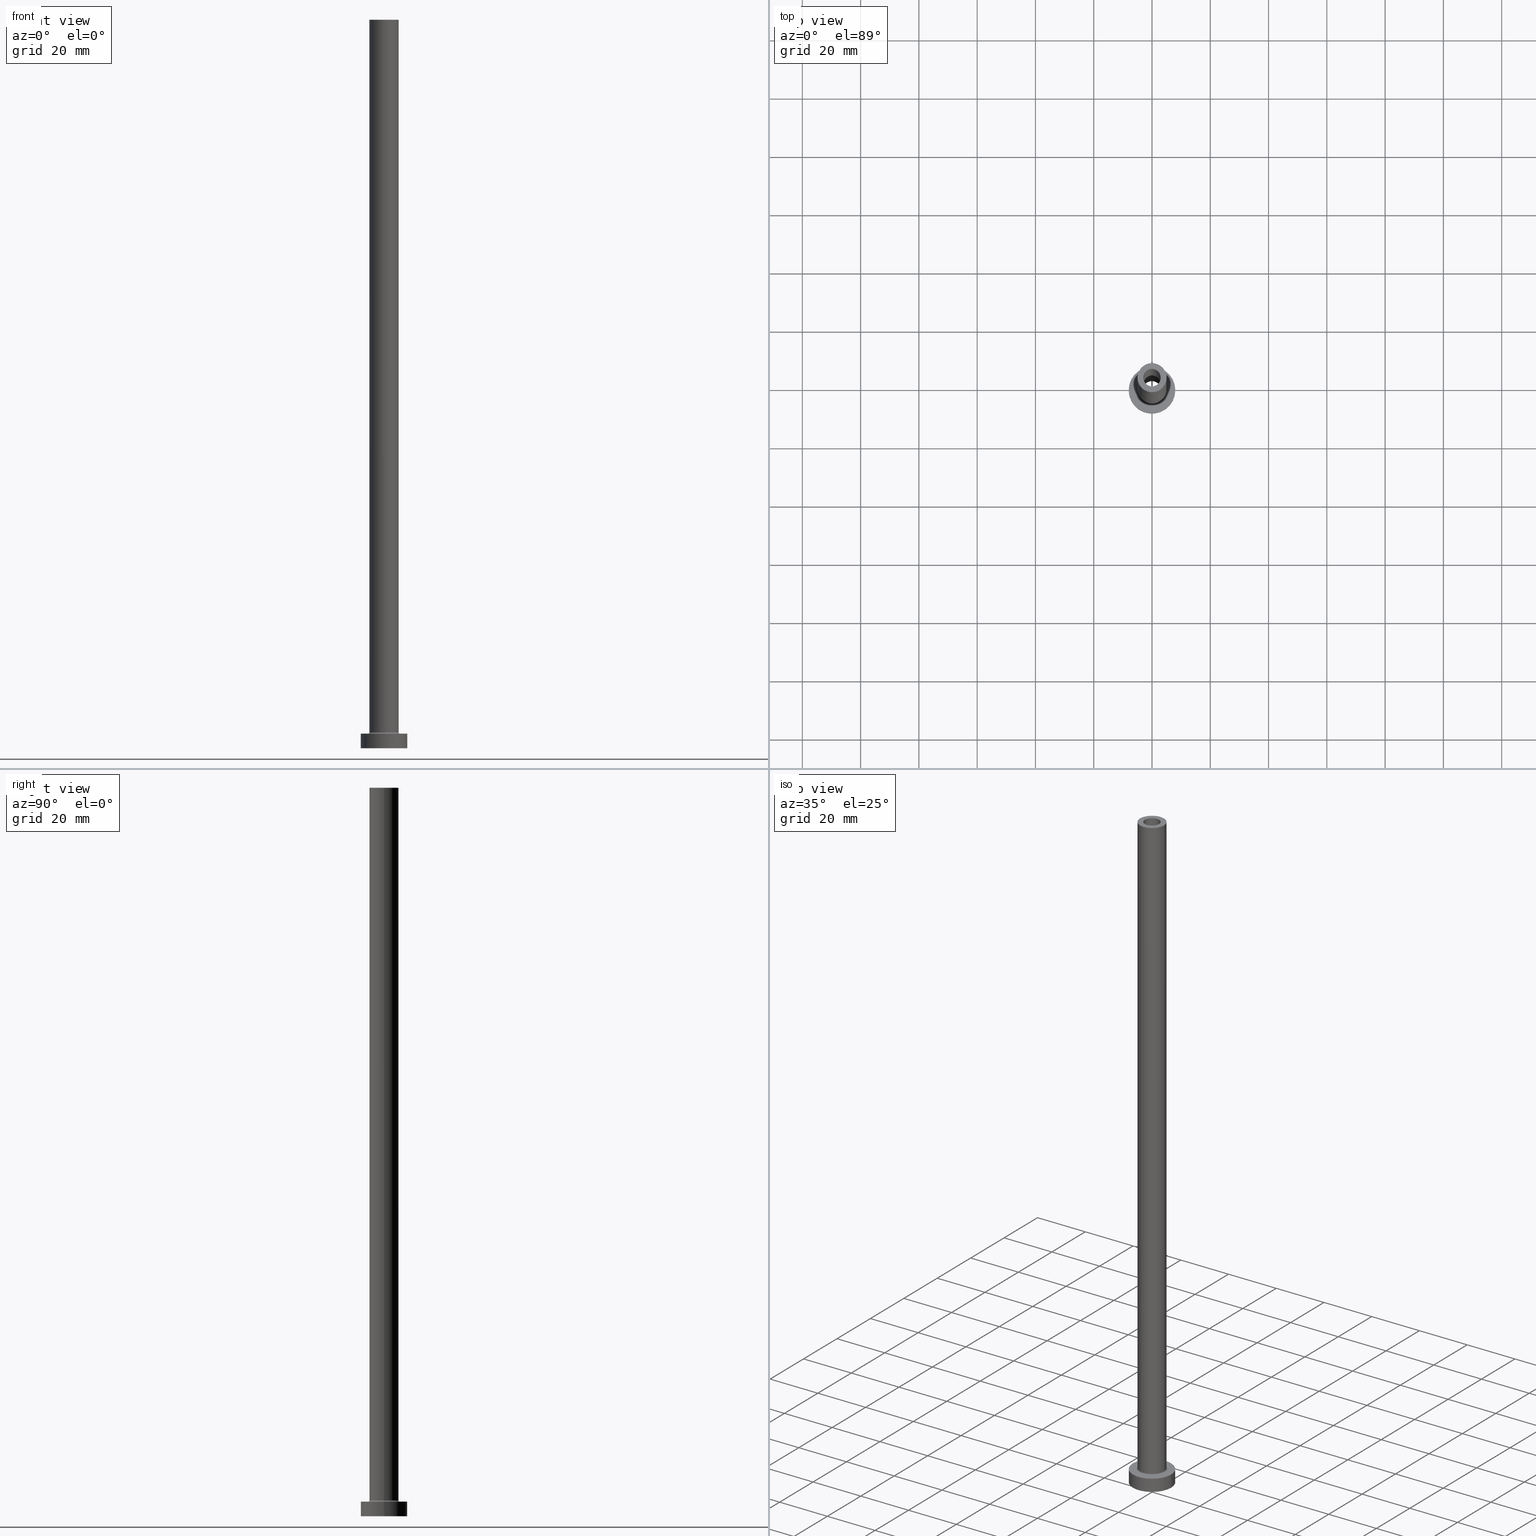
[diagram: canonical four-view strip — front | top / right | iso, engineering-drawing reading convention]
A machine part, canonical four-view strip (front | top / right | iso — engineering-drawing reading convention). The complete STEP part file that produces these views, byte-faithful:
ISO-10303-21;
HEADER;
FILE_DESCRIPTION (( 'STEP AP203' ),
    '1' );
FILE_NAME ('a1bf.STEP',
    '2023-02-13T09:13:33',
    ( '' ),
    ( '' ),
    'SwSTEP 2.0',
    'SolidWorks 2019',
    '' );
FILE_SCHEMA (( 'CONFIG_CONTROL_DESIGN' ));
ENDSEC;

DATA;
#1 = DIRECTION ( 'NONE',  ( 1.000000000000000000, 0.000000000000000000, -0.000000000000000000 ) ) ;
#2 = VERTEX_POINT ( 'NONE', #296 ) ;
#3 = CC_DESIGN_APPROVAL ( #139, ( #97 ) ) ;
#4 = EDGE_CURVE ( 'NONE', #98, #156, #349, .T. ) ;
#5 = ORIENTED_EDGE ( 'NONE', *, *, #283, .T. ) ;
#6 = DIRECTION ( 'NONE',  ( 1.000000000000000000, 0.000000000000000000, -0.000000000000000000 ) ) ;
#7 = CC_DESIGN_DATE_AND_TIME_ASSIGNMENT ( #41, #38, ( #97 ) ) ;
#8 = DIRECTION ( 'NONE',  ( 0.000000000000000000, 0.000000000000000000, 1.000000000000000000 ) ) ;
#9 = AXIS2_PLACEMENT_3D ( 'NONE', #418, #234, #50 ) ;
#10 = ORIENTED_EDGE ( 'NONE', *, *, #68, .T. ) ;
#11 = ORIENTED_EDGE ( 'NONE', *, *, #381, .T. ) ;
#12 = PERSON_AND_ORGANIZATION ( #409, #137 ) ;
#13 = CARTESIAN_POINT ( 'NONE',  ( 0.000000000000000000, 0.000000000000000000, 205.0000000000000284 ) ) ;
#14 = DIRECTION ( 'NONE',  ( 1.000000000000000000, 0.000000000000000000, 0.000000000000000000 ) ) ;
#15 = ADVANCED_FACE ( 'NONE', ( #43 ), #435, .T. ) ;
#16 = DIRECTION ( 'NONE',  ( -0.000000000000000000, -0.000000000000000000, -1.000000000000000000 ) ) ;
#17 = CARTESIAN_POINT ( 'NONE',  ( 3.000000000000000444, 3.673940397442059868E-16, 205.0000000000000284 ) ) ;
#18 = DIRECTION ( 'NONE',  ( 0.000000000000000000, 0.000000000000000000, 1.000000000000000000 ) ) ;
#19 = FACE_OUTER_BOUND ( 'NONE', #398, .T. ) ;
#20 = CYLINDRICAL_SURFACE ( 'NONE', #350, 3.000000000000000444 ) ;
#21 = DATE_AND_TIME ( #346, #299 ) ;
#22 = APPLICATION_PROTOCOL_DEFINITION ( 'international standard', 'config_control_design', 1994, #52 ) ;
#23 = DIRECTION ( 'NONE',  ( 0.000000000000000000, 0.000000000000000000, -1.000000000000000000 ) ) ;
#24 = EDGE_CURVE ( 'NONE', #379, #173, #406, .T. ) ;
#25 = APPROVAL_PERSON_ORGANIZATION ( #201, #139, #136 ) ;
#26 = SHAPE_DEFINITION_REPRESENTATION ( #226, #257 ) ;
#27 = CARTESIAN_POINT ( 'NONE',  ( -5.500000000000000000, 6.735557395310442023E-16, 5.000000000000002665 ) ) ;
#28 = EDGE_LOOP ( 'NONE', ( #242, #330, #454, #34 ) ) ;
#29 = SECURITY_CLASSIFICATION_LEVEL ( 'unclassified' ) ;
#30 = FACE_BOUND ( 'NONE', #396, .T. ) ;
#31 = ORIENTED_EDGE ( 'NONE', *, *, #109, .F. ) ;
#32 = ADVANCED_FACE ( 'NONE', ( #123 ), #297, .T. ) ;
#33 = FACE_OUTER_BOUND ( 'NONE', #96, .T. ) ;
#34 = ORIENTED_EDGE ( 'NONE', *, *, #59, .F. ) ;
#35 = VECTOR ( 'NONE', #119, 1000.000000000000000 ) ;
#36 = LINE ( 'NONE', #397, #81 ) ;
#37 = EDGE_LOOP ( 'NONE', ( #419, #408 ) ) ;
#38 = DATE_TIME_ROLE ( 'creation_date' ) ;
#39 = AXIS2_PLACEMENT_3D ( 'NONE', #328, #263, #155 ) ;
#40 = VERTEX_POINT ( 'NONE', #437 ) ;
#41 = DATE_AND_TIME ( #219, #74 ) ;
#42 = DIRECTION ( 'NONE',  ( 1.000000000000000000, 0.000000000000000000, 0.000000000000000000 ) ) ;
#43 = FACE_OUTER_BOUND ( 'NONE', #410, .T. ) ;
#44 = DIRECTION ( 'NONE',  ( 1.000000000000000000, 0.000000000000000000, 0.000000000000000000 ) ) ;
#45 = FACE_OUTER_BOUND ( 'NONE', #439, .T. ) ;
#46 = CIRCLE ( 'NONE', #316, 3.150000000000000355 ) ;
#47 = CC_DESIGN_PERSON_AND_ORGANIZATION_ASSIGNMENT ( #216, #259, ( #97 ) ) ;
#48 = ORIENTED_EDGE ( 'NONE', *, *, #169, .F. ) ;
#49 = DIRECTION ( 'NONE',  ( -1.000000000000000000, 0.000000000000000000, 0.000000000000000000 ) ) ;
#50 = DIRECTION ( 'NONE',  ( 1.000000000000000000, 0.000000000000000000, 0.000000000000000000 ) ) ;
#51 = VERTEX_POINT ( 'NONE', #364 ) ;
#52 = APPLICATION_CONTEXT ( 'configuration controlled 3d designs of mechanical parts and assemblies' ) ;
#53 = DIRECTION ( 'NONE',  ( 0.000000000000000000, 0.000000000000000000, 1.000000000000000000 ) ) ;
#54 = CIRCLE ( 'NONE', #89, 3.000000000000000444 ) ;
#55 = PERSON_AND_ORGANIZATION_ROLE ( 'design_owner' ) ;
#56 = VERTEX_POINT ( 'NONE', #303 ) ;
#57 = PERSON_AND_ORGANIZATION ( #409, #137 ) ;
#58 = CARTESIAN_POINT ( 'NONE',  ( 0.000000000000000000, 0.000000000000000000, 5.000000000000000000 ) ) ;
#59 = EDGE_CURVE ( 'NONE', #165, #51, #235, .T. ) ;
#60 = ORIENTED_EDGE ( 'NONE', *, *, #4, .T. ) ;
#61 = DIRECTION ( 'NONE',  ( 1.000000000000000000, 0.000000000000000000, 0.000000000000000000 ) ) ;
#62 = ORIENTED_EDGE ( 'NONE', *, *, #362, .T. ) ;
#63 = VECTOR ( 'NONE', #326, 1000.000000000000000 ) ;
#64 = LOCAL_TIME ( 10, 13, 33.00000000000000000, #241 ) ;
#65 = PERSON_AND_ORGANIZATION_ROLE ( 'creator' ) ;
#66 = CARTESIAN_POINT ( 'NONE',  ( -8.000000000000000000, 0.000000000000000000, 5.000000000000000000 ) ) ;
#67 = EDGE_LOOP ( 'NONE', ( #332, #212 ) ) ;
#68 = EDGE_CURVE ( 'NONE', #2, #433, #354, .T. ) ;
#69 = CARTESIAN_POINT ( 'NONE',  ( 3.000000000000000444, 3.673940397442059868E-16, 250.0000000000000000 ) ) ;
#70 = ORIENTED_EDGE ( 'NONE', *, *, #198, .T. ) ;
#71 = AXIS2_PLACEMENT_3D ( 'NONE', #298, #120, #220 ) ;
#72 = ORIENTED_EDGE ( 'NONE', *, *, #351, .T. ) ;
#73 = CIRCLE ( 'NONE', #319, 5.000000000000000000 ) ;
#74 = LOCAL_TIME ( 10, 13, 33.00000000000000000, #76 ) ;
#75 = EDGE_LOOP ( 'NONE', ( #48, #185, #218, #208 ) ) ;
#76 = COORDINATED_UNIVERSAL_TIME_OFFSET ( 1, 0, .AHEAD. ) ;
#77 = CARTESIAN_POINT ( 'NONE',  ( 0.000000000000000000, 0.000000000000000000, 250.0000000000000000 ) ) ;
#78 = DIRECTION ( 'NONE',  ( 1.000000000000000000, 0.000000000000000000, 0.000000000000000000 ) ) ;
#79 = APPROVAL ( #384, 'NEUR�EN�' ) ;
#80 = CIRCLE ( 'NONE', #9, 5.000000000000000000 ) ;
#81 = VECTOR ( 'NONE', #110, 1000.000000000000000 ) ;
#82 = DIRECTION ( 'NONE',  ( 1.000000000000000000, 0.000000000000000000, 0.000000000000000000 ) ) ;
#83 = ADVANCED_FACE ( 'NONE', ( #45 ), #368, .T. ) ;
#84 = CARTESIAN_POINT ( 'NONE',  ( 0.000000000000000000, 0.000000000000000000, 205.0000000000000284 ) ) ;
#85 = DIRECTION ( 'NONE',  ( -1.000000000000000000, 0.000000000000000000, 0.000000000000000000 ) ) ;
#86 = LINE ( 'NONE', #222, #35 ) ;
#87 = CARTESIAN_POINT ( 'NONE',  ( 0.000000000000000000, 0.000000000000000000, 5.000000000000000000 ) ) ;
#88 = DIRECTION ( 'NONE',  ( 1.000000000000000000, 0.000000000000000000, 0.000000000000000000 ) ) ;
#89 = AXIS2_PLACEMENT_3D ( 'NONE', #84, #347, #302 ) ;
#90 = ORIENTED_EDGE ( 'NONE', *, *, #333, .T. ) ;
#91 = DATE_AND_TIME ( #279, #416 ) ;
#92 = PERSON_AND_ORGANIZATION ( #409, #137 ) ;
#93 = CARTESIAN_POINT ( 'NONE',  ( 0.000000000000000000, 0.000000000000000000, 250.0000000000000000 ) ) ;
#94 = COORDINATED_UNIVERSAL_TIME_OFFSET ( 1, 0, .AHEAD. ) ;
#95 = CARTESIAN_POINT ( 'NONE',  ( -8.000000000000000000, 0.000000000000000000, 0.000000000000000000 ) ) ;
#96 = EDGE_LOOP ( 'NONE', ( #5, #90 ) ) ;
#97 = PRODUCT_DEFINITION ( 'NEZN�M�', '', #262, #365 ) ;
#98 = VERTEX_POINT ( 'NONE', #264 ) ;
#99 = DIRECTION ( 'NONE',  ( -1.000000000000000000, 1.224646799147351482E-16, 0.000000000000000000 ) ) ;
#100 = MANIFOLD_SOLID_BREP ( 'Odebrat vysunut�m4', #293 ) ;
#101 = CIRCLE ( 'NONE', #385, 0.5000000000000004441 ) ;
#102 = CARTESIAN_POINT ( 'NONE',  ( 0.000000000000000000, 0.000000000000000000, 0.000000000000000000 ) ) ;
#103 = ORIENTED_EDGE ( 'NONE', *, *, #443, .F. ) ;
#104 = ADVANCED_FACE ( 'NONE', ( #360 ), #144, .F. ) ;
#105 = CARTESIAN_POINT ( 'NONE',  ( 0.000000000000000000, 0.000000000000000000, 250.0000000000000000 ) ) ;
#106 = FACE_OUTER_BOUND ( 'NONE', #291, .T. ) ;
#107 = ORIENTED_EDGE ( 'NONE', *, *, #225, .F. ) ;
#108 = VECTOR ( 'NONE', #434, 1000.000000000000000 ) ;
#109 = EDGE_CURVE ( 'NONE', #51, #165, #271, .T. ) ;
#110 = DIRECTION ( 'NONE',  ( -0.000000000000000000, -0.000000000000000000, -1.000000000000000000 ) ) ;
#111 = VERTEX_POINT ( 'NONE', #301 ) ;
#112 = DIRECTION ( 'NONE',  ( 0.000000000000000000, 0.000000000000000000, -1.000000000000000000 ) ) ;
#113 = DIRECTION ( 'NONE',  ( -0.000000000000000000, -0.000000000000000000, -1.000000000000000000 ) ) ;
#114 = UNCERTAINTY_MEASURE_WITH_UNIT (LENGTH_MEASURE( 1.000000000000000082E-05 ), #269, 'distance_accuracy_value', 'NONE');
#115 = ADVANCED_FACE ( 'NONE', ( #122, #267 ), #445, .F. ) ;
#116 = CARTESIAN_POINT ( 'NONE',  ( 0.000000000000000000, 0.000000000000000000, 0.000000000000000000 ) ) ;
#117 = AXIS2_PLACEMENT_3D ( 'NONE', #255, #8, #214 ) ;
#118 = AXIS2_PLACEMENT_3D ( 'NONE', #58, #451, #314 ) ;
#119 = DIRECTION ( 'NONE',  ( 0.000000000000000000, 0.000000000000000000, -1.000000000000000000 ) ) ;
#120 = DIRECTION ( 'NONE',  ( -0.000000000000000000, -0.000000000000000000, -1.000000000000000000 ) ) ;
#121 = DIRECTION ( 'NONE',  ( 1.000000000000000000, 0.000000000000000000, 0.000000000000000000 ) ) ;
#122 = FACE_BOUND ( 'NONE', #295, .T. ) ;
#123 = FACE_OUTER_BOUND ( 'NONE', #461, .T. ) ;
#124 = VECTOR ( 'NONE', #436, 1000.000000000000000 ) ;
#125 = CARTESIAN_POINT ( 'NONE',  ( 0.000000000000000000, 0.000000000000000000, 0.000000000000000000 ) ) ;
#126 = CIRCLE ( 'NONE', #361, 5.000000000000000000 ) ;
#127 = ORIENTED_EDGE ( 'NONE', *, *, #4, .F. ) ;
#128 = APPROVAL_STATUS ( 'not_yet_approved' ) ;
#129 = CARTESIAN_POINT ( 'NONE',  ( -8.000000000000000000, 0.000000000000000000, 5.000000000000000000 ) ) ;
#130 = VERTEX_POINT ( 'NONE', #449 ) ;
#131 = APPROVAL_ROLE ( '' ) ;
#132 = DIRECTION ( 'NONE',  ( 1.000000000000000000, 0.000000000000000000, 0.000000000000000000 ) ) ;
#133 = DIRECTION ( 'NONE',  ( 1.000000000000000000, 0.000000000000000000, 0.000000000000000000 ) ) ;
#134 = ADVANCED_FACE ( 'NONE', ( #345 ), #20, .F. ) ;
#135 = ORIENTED_EDGE ( 'NONE', *, *, #333, .F. ) ;
#136 = APPROVAL_ROLE ( '' ) ;
#137 = ORGANIZATION ( 'NEUR�EN�', 'NEUR�EN�', '' ) ;
#138 = ORIENTED_EDGE ( 'NONE', *, *, #250, .F. ) ;
#139 = APPROVAL ( #171, 'NEUR�EN�' ) ;
#140 = ORIENTED_EDGE ( 'NONE', *, *, #230, .F. ) ;
#141 = APPROVAL_DATE_TIME ( #91, #79 ) ;
#142 = DIRECTION ( 'NONE',  ( 0.000000000000000000, 0.000000000000000000, 1.000000000000000000 ) ) ;
#143 = ORIENTED_EDGE ( 'NONE', *, *, #362, .F. ) ;
#144 = TOROIDAL_SURFACE ( 'NONE', #254, 5.500000000000000000, 0.5000000000000000000 ) ;
#145 = LINE ( 'NONE', #69, #336 ) ;
#146 = ORIENTED_EDGE ( 'NONE', *, *, #265, .F. ) ;
#147 = AXIS2_PLACEMENT_3D ( 'NONE', #125, #277, #282 ) ;
#148 = PLANE ( 'NONE',  #213 ) ;
#149 = CC_DESIGN_PERSON_AND_ORGANIZATION_ASSIGNMENT ( #243, #411, ( #262 ) ) ;
#150 = EDGE_LOOP ( 'NONE', ( #352, #210 ) ) ;
#151 = CARTESIAN_POINT ( 'NONE',  ( 0.000000000000000000, 0.000000000000000000, 0.000000000000000000 ) ) ;
#152 = EDGE_CURVE ( 'NONE', #178, #40, #80, .T. ) ;
#153 = APPLICATION_CONTEXT ( 'configuration controlled 3d designs of mechanical parts and assemblies' ) ;
#154 = CARTESIAN_POINT ( 'NONE',  ( -3.000000000000000444, 0.000000000000000000, 250.0000000000000000 ) ) ;
#155 = DIRECTION ( 'NONE',  ( 1.000000000000000000, 0.000000000000000000, 0.000000000000000000 ) ) ;
#156 = VERTEX_POINT ( 'NONE', #95 ) ;
#157 = CARTESIAN_POINT ( 'NONE',  ( -5.000000000000000000, 0.000000000000000000, 250.0000000000000000 ) ) ;
#158 = ORIENTED_EDGE ( 'NONE', *, *, #152, .T. ) ;
#159 = CARTESIAN_POINT ( 'NONE',  ( 0.000000000000000000, 0.000000000000000000, 205.0000000000000284 ) ) ;
#160 = AXIS2_PLACEMENT_3D ( 'NONE', #159, #405, #78 ) ;
#161 = CIRCLE ( 'NONE', #147, 3.150000000000000355 ) ;
#162 = DIRECTION ( 'NONE',  ( 1.000000000000000000, 0.000000000000000000, 0.000000000000000000 ) ) ;
#163 = CARTESIAN_POINT ( 'NONE',  ( -3.000000000000000444, 0.000000000000000000, 205.0000000000000284 ) ) ;
#164 = EDGE_CURVE ( 'NONE', #40, #178, #73, .T. ) ;
#165 = VERTEX_POINT ( 'NONE', #27 ) ;
#166 = ADVANCED_FACE ( 'NONE', ( #30, #106 ), #317, .F. ) ;
#167 = DIRECTION ( 'NONE',  ( 0.000000000000000000, 0.000000000000000000, -1.000000000000000000 ) ) ;
#168 = APPROVAL_PERSON_ORGANIZATION ( #421, #427, #309 ) ;
#169 = EDGE_CURVE ( 'NONE', #402, #98, #245, .T. ) ;
#170 = DIRECTION ( 'NONE',  ( -1.000000000000000000, 0.000000000000000000, 0.000000000000000000 ) ) ;
#171 = APPROVAL_STATUS ( 'not_yet_approved' ) ;
#172 = DIRECTION ( 'NONE',  ( 0.000000000000000000, 0.000000000000000000, -1.000000000000000000 ) ) ;
#173 = VERTEX_POINT ( 'NONE', #154 ) ;
#174 = CC_DESIGN_APPROVAL ( #427, ( #374 ) ) ;
#175 = CARTESIAN_POINT ( 'NONE',  ( 0.000000000000000000, 0.000000000000000000, 5.500000000000005329 ) ) ;
#176 = EDGE_LOOP ( 'NONE', ( #10, #231, #391, #358 ) ) ;
#177 = CARTESIAN_POINT ( 'NONE',  ( 0.000000000000000000, 0.000000000000000000, 5.000000000000000000 ) ) ;
#178 = VERTEX_POINT ( 'NONE', #390 ) ;
#179 = PLANE ( 'NONE',  #256 ) ;
#180 = EDGE_LOOP ( 'NONE', ( #196, #72, #286, #249 ) ) ;
#181 = AXIS2_PLACEMENT_3D ( 'NONE', #285, #357, #61 ) ;
#182 = CC_DESIGN_APPROVAL ( #79, ( #262 ) ) ;
#183 = CARTESIAN_POINT ( 'NONE',  ( 8.000000000000000000, 9.797174393178825657E-16, 5.000000000000000000 ) ) ;
#184 = ADVANCED_FACE ( 'NONE', ( #294 ), #373, .F. ) ;
#185 = ORIENTED_EDGE ( 'NONE', *, *, #340, .F. ) ;
#186 = CARTESIAN_POINT ( 'NONE',  ( 0.000000000000000000, 0.000000000000000000, 5.000000000000000000 ) ) ;
#187 = VERTEX_POINT ( 'NONE', #460 ) ;
#188 = AXIS2_PLACEMENT_3D ( 'NONE', #13, #338, #42 ) ;
#189 = CARTESIAN_POINT ( 'NONE',  ( 0.000000000000000000, 0.000000000000000000, 250.0000000000000000 ) ) ;
#190 = ORIENTED_EDGE ( 'NONE', *, *, #278, .T. ) ;
#191 = EDGE_CURVE ( 'NONE', #173, #379, #272, .T. ) ;
#192 = CARTESIAN_POINT ( 'NONE',  ( 0.000000000000000000, 0.000000000000000000, 213.9095454429505310 ) ) ;
#193 = DIRECTION ( 'NONE',  ( 0.000000000000000000, 0.000000000000000000, 1.000000000000000000 ) ) ;
#194 = CARTESIAN_POINT ( 'NONE',  ( 0.000000000000000000, 0.000000000000000000, 250.0000000000000000 ) ) ;
#195 = AXIS2_PLACEMENT_3D ( 'NONE', #102, #428, #248 ) ;
#196 = ORIENTED_EDGE ( 'NONE', *, *, #371, .F. ) ;
#197 = DIRECTION ( 'NONE',  ( 0.000000000000000000, -1.000000000000000000, 0.000000000000000000 ) ) ;
#198 = EDGE_CURVE ( 'NONE', #40, #165, #238, .T. ) ;
#199 = COORDINATED_UNIVERSAL_TIME_OFFSET ( 1, 0, .AHEAD. ) ;
#200 = COORDINATED_UNIVERSAL_TIME_OFFSET ( 1, 0, .AHEAD. ) ;
#201 = PERSON_AND_ORGANIZATION ( #409, #137 ) ;
#202 = APPROVAL_DATE_TIME ( #21, #427 ) ;
#203 =( NAMED_UNIT ( * ) PLANE_ANGLE_UNIT ( ) SI_UNIT ( $, .RADIAN. ) );
#204 = DIRECTION ( 'NONE',  ( 0.000000000000000000, 0.000000000000000000, 1.000000000000000000 ) ) ;
#205 = PERSON_AND_ORGANIZATION ( #409, #137 ) ;
#206 = EDGE_LOOP ( 'NONE', ( #107, #322, #307, #143 ) ) ;
#207 = DIRECTION ( 'NONE',  ( -0.000000000000000000, -0.000000000000000000, -1.000000000000000000 ) ) ;
#208 = ORIENTED_EDGE ( 'NONE', *, *, #230, .T. ) ;
#209 = LINE ( 'NONE', #320, #458 ) ;
#210 = ORIENTED_EDGE ( 'NONE', *, *, #420, .T. ) ;
#211 = EDGE_CURVE ( 'NONE', #424, #156, #387, .T. ) ;
#212 = ORIENTED_EDGE ( 'NONE', *, *, #59, .T. ) ;
#213 = AXIS2_PLACEMENT_3D ( 'NONE', #177, #318, #1 ) ;
#214 = DIRECTION ( 'NONE',  ( 1.000000000000000000, 0.000000000000000000, -0.000000000000000000 ) ) ;
#215 = PRODUCT_RELATED_PRODUCT_CATEGORY ( 'detail', '', ( #253 ) ) ;
#216 = PERSON_AND_ORGANIZATION ( #409, #137 ) ;
#217 = LINE ( 'NONE', #157, #124 ) ;
#218 = ORIENTED_EDGE ( 'NONE', *, *, #211, .T. ) ;
#219 = CALENDAR_DATE ( 2023, 13, 2 ) ;
#220 = DIRECTION ( 'NONE',  ( -1.000000000000000000, 0.000000000000000000, 0.000000000000000000 ) ) ;
#221 = ADVANCED_FACE ( 'NONE', ( #251, #426 ), #148, .T. ) ;
#222 = CARTESIAN_POINT ( 'NONE',  ( 3.150000000000000355, 3.857637417314163182E-16, 213.9095454429505310 ) ) ;
#223 = DIRECTION ( 'NONE',  ( -0.000000000000000000, -0.000000000000000000, -1.000000000000000000 ) ) ;
#224 = CARTESIAN_POINT ( 'NONE',  ( 0.000000000000000000, 0.000000000000000000, 5.000000000000000000 ) ) ;
#225 = EDGE_CURVE ( 'NONE', #379, #281, #145, .T. ) ;
#226 = PRODUCT_DEFINITION_SHAPE ( 'NONE', 'NONE',  #97 ) ;
#227 = AXIS2_PLACEMENT_3D ( 'NONE', #233, #53, #132 ) ;
#228 = CYLINDRICAL_SURFACE ( 'NONE', #288, 3.150000000000000355 ) ;
#229 = CARTESIAN_POINT ( 'NONE',  ( 0.000000000000000000, 0.000000000000000000, 5.000000000000000000 ) ) ;
#230 = EDGE_CURVE ( 'NONE', #156, #98, #395, .T. ) ;
#231 = ORIENTED_EDGE ( 'NONE', *, *, #371, .T. ) ;
#232 = CALENDAR_DATE ( 2023, 13, 2 ) ;
#233 = CARTESIAN_POINT ( 'NONE',  ( 0.000000000000000000, 0.000000000000000000, 0.000000000000000000 ) ) ;
#234 = DIRECTION ( 'NONE',  ( 0.000000000000000000, 0.000000000000000000, 1.000000000000000000 ) ) ;
#235 = CIRCLE ( 'NONE', #343, 5.500000000000000000 ) ;
#236 = ORIENTED_EDGE ( 'NONE', *, *, #381, .F. ) ;
#237 = PERSON_AND_ORGANIZATION_ROLE ( 'classification_officer' ) ;
#238 = CIRCLE ( 'NONE', #329, 0.5000000000000004441 ) ;
#239 = CARTESIAN_POINT ( 'NONE',  ( 0.000000000000000000, 0.000000000000000000, 250.0000000000000000 ) ) ;
#240 = LOCAL_TIME ( 10, 13, 33.00000000000000000, #200 ) ;
#241 = COORDINATED_UNIVERSAL_TIME_OFFSET ( 1, 0, .AHEAD. ) ;
#242 = ORIENTED_EDGE ( 'NONE', *, *, #198, .F. ) ;
#243 = PERSON_AND_ORGANIZATION ( #409, #137 ) ;
#244 = AXIS2_PLACEMENT_3D ( 'NONE', #339, #193, #82 ) ;
#245 = LINE ( 'NONE', #183, #63 ) ;
#246 = APPROVAL_PERSON_ORGANIZATION ( #12, #79, #131 ) ;
#247 = EDGE_LOOP ( 'NONE', ( #270, #276 ) ) ;
#248 = DIRECTION ( 'NONE',  ( 1.000000000000000000, 0.000000000000000000, 0.000000000000000000 ) ) ;
#249 = ORIENTED_EDGE ( 'NONE', *, *, #265, .T. ) ;
#250 = EDGE_CURVE ( 'NONE', #173, #289, #209, .T. ) ;
#251 = FACE_BOUND ( 'NONE', #67, .T. ) ;
#252 = ORIENTED_EDGE ( 'NONE', *, *, #304, .F. ) ;
#253 = PRODUCT ( 'a1bf', 'a1bf', '', ( #344 ) ) ;
#254 = AXIS2_PLACEMENT_3D ( 'NONE', #366, #18, #335 ) ;
#255 = CARTESIAN_POINT ( 'NONE',  ( 0.000000000000000000, 0.000000000000000000, 0.000000000000000000 ) ) ;
#256 = AXIS2_PLACEMENT_3D ( 'NONE', #105, #392, #6 ) ;
#257 = ADVANCED_BREP_SHAPE_REPRESENTATION ( 'a1bf', ( #100, #227 ), #331 ) ;
#258 = ADVANCED_FACE ( 'NONE', ( #290, #33 ), #179, .T. ) ;
#259 = PERSON_AND_ORGANIZATION_ROLE ( 'creator' ) ;
#260 = DIRECTION ( 'NONE',  ( -0.000000000000000000, -0.000000000000000000, -1.000000000000000000 ) ) ;
#261 = CARTESIAN_POINT ( 'NONE',  ( 0.000000000000000000, 0.000000000000000000, 5.000000000000000000 ) ) ;
#262 = PRODUCT_DEFINITION_FORMATION_WITH_SPECIFIED_SOURCE ( 'LIBOVOLN�', '', #253, .NOT_KNOWN. ) ;
#263 = DIRECTION ( 'NONE',  ( 0.000000000000000000, 0.000000000000000000, 1.000000000000000000 ) ) ;
#264 = CARTESIAN_POINT ( 'NONE',  ( 8.000000000000000000, 9.797174393178825657E-16, 0.000000000000000000 ) ) ;
#265 = EDGE_CURVE ( 'NONE', #130, #187, #46, .T. ) ;
#266 = DIRECTION ( 'NONE',  ( 0.000000000000000000, 0.000000000000000000, 1.000000000000000000 ) ) ;
#267 = FACE_OUTER_BOUND ( 'NONE', #247, .T. ) ;
#268 = CC_DESIGN_PERSON_AND_ORGANIZATION_ASSIGNMENT ( #57, #237, ( #374 ) ) ;
#269 =( LENGTH_UNIT ( ) NAMED_UNIT ( * ) SI_UNIT ( .MILLI., .METRE. ) );
#270 = ORIENTED_EDGE ( 'NONE', *, *, #68, .F. ) ;
#271 = CIRCLE ( 'NONE', #382, 5.500000000000000000 ) ;
#272 = CIRCLE ( 'NONE', #181, 3.000000000000000444 ) ;
#273 = CIRCLE ( 'NONE', #118, 8.000000000000000000 ) ;
#274 =( NAMED_UNIT ( * ) SI_UNIT ( $, .STERADIAN. ) SOLID_ANGLE_UNIT ( ) );
#275 = EDGE_CURVE ( 'NONE', #2, #130, #431, .T. ) ;
#276 = ORIENTED_EDGE ( 'NONE', *, *, #351, .F. ) ;
#277 = DIRECTION ( 'NONE',  ( -0.000000000000000000, -0.000000000000000000, -1.000000000000000000 ) ) ;
#278 = EDGE_CURVE ( 'NONE', #111, #40, #217, .T. ) ;
#279 = CALENDAR_DATE ( 2023, 13, 2 ) ;
#280 = CARTESIAN_POINT ( 'NONE',  ( 5.500000000000000000, 0.000000000000000000, 5.500000000000005329 ) ) ;
#281 = VERTEX_POINT ( 'NONE', #17 ) ;
#282 = DIRECTION ( 'NONE',  ( 1.000000000000000000, 0.000000000000000000, 0.000000000000000000 ) ) ;
#283 = EDGE_CURVE ( 'NONE', #111, #56, #383, .T. ) ;
#284 = CC_DESIGN_PERSON_AND_ORGANIZATION_ASSIGNMENT ( #92, #55, ( #253 ) ) ;
#285 = CARTESIAN_POINT ( 'NONE',  ( 0.000000000000000000, 0.000000000000000000, 250.0000000000000000 ) ) ;
#286 = ORIENTED_EDGE ( 'NONE', *, *, #275, .T. ) ;
#287 = DIRECTION ( 'NONE',  ( 0.000000000000000000, 0.000000000000000000, -1.000000000000000000 ) ) ;
#288 = AXIS2_PLACEMENT_3D ( 'NONE', #417, #341, #312 ) ;
#289 = VERTEX_POINT ( 'NONE', #163 ) ;
#290 = FACE_BOUND ( 'NONE', #37, .T. ) ;
#291 = EDGE_LOOP ( 'NONE', ( #140, #127 ) ) ;
#292 = DIRECTION ( 'NONE',  ( -0.000000000000000000, -0.000000000000000000, -1.000000000000000000 ) ) ;
#293 = CLOSED_SHELL ( 'NONE', ( #452, #388, #104, #83, #32, #413, #221, #166, #15, #258, #184, #327, #115, #134 ) ) ;
#294 = FACE_OUTER_BOUND ( 'NONE', #28, .T. ) ;
#295 = EDGE_LOOP ( 'NONE', ( #11, #62 ) ) ;
#296 = CARTESIAN_POINT ( 'NONE',  ( -3.150000000000000355, 0.000000000000000000, 205.0000000000000284 ) ) ;
#297 = CYLINDRICAL_SURFACE ( 'NONE', #423, 8.000000000000000000 ) ;
#298 = CARTESIAN_POINT ( 'NONE',  ( 0.000000000000000000, 0.000000000000000000, 250.0000000000000000 ) ) ;
#299 = LOCAL_TIME ( 10, 13, 33.00000000000000000, #94 ) ;
#300 = DIRECTION ( 'NONE',  ( 0.000000000000000000, 0.000000000000000000, 1.000000000000000000 ) ) ;
#301 = CARTESIAN_POINT ( 'NONE',  ( -5.000000000000000000, 0.000000000000000000, 250.0000000000000000 ) ) ;
#302 = DIRECTION ( 'NONE',  ( 1.000000000000000000, 0.000000000000000000, 0.000000000000000000 ) ) ;
#303 = CARTESIAN_POINT ( 'NONE',  ( 5.000000000000000000, 6.123233995736766282E-16, 250.0000000000000000 ) ) ;
#304 = EDGE_CURVE ( 'NONE', #56, #178, #36, .T. ) ;
#305 = AXIS2_PLACEMENT_3D ( 'NONE', #116, #442, #88 ) ;
#306 = DIRECTION ( 'NONE',  ( 1.000000000000000000, 0.000000000000000000, -0.000000000000000000 ) ) ;
#307 = ORIENTED_EDGE ( 'NONE', *, *, #250, .T. ) ;
#308 = CIRCLE ( 'NONE', #450, 8.000000000000000000 ) ;
#309 = APPROVAL_ROLE ( '' ) ;
#310 = CARTESIAN_POINT ( 'NONE',  ( 8.000000000000000000, 9.797174393178825657E-16, 5.000000000000000000 ) ) ;
#311 = ORIENTED_EDGE ( 'NONE', *, *, #283, .F. ) ;
#312 = DIRECTION ( 'NONE',  ( -1.000000000000000000, 0.000000000000000000, 0.000000000000000000 ) ) ;
#313 = CARTESIAN_POINT ( 'NONE',  ( 0.000000000000000000, 0.000000000000000000, 5.500000000000005329 ) ) ;
#314 = DIRECTION ( 'NONE',  ( 1.000000000000000000, 0.000000000000000000, 0.000000000000000000 ) ) ;
#315 = ORIENTED_EDGE ( 'NONE', *, *, #211, .F. ) ;
#316 = AXIS2_PLACEMENT_3D ( 'NONE', #151, #292, #429 ) ;
#317 = PLANE ( 'NONE',  #117 ) ;
#318 = DIRECTION ( 'NONE',  ( 0.000000000000000000, 0.000000000000000000, 1.000000000000000000 ) ) ;
#319 = AXIS2_PLACEMENT_3D ( 'NONE', #313, #455, #133 ) ;
#320 = CARTESIAN_POINT ( 'NONE',  ( -3.000000000000000444, 0.000000000000000000, 250.0000000000000000 ) ) ;
#321 = AXIS2_PLACEMENT_3D ( 'NONE', #192, #112, #399 ) ;
#322 = ORIENTED_EDGE ( 'NONE', *, *, #24, .T. ) ;
#323 = DIRECTION ( 'NONE',  ( 1.224646799147353207E-16, 1.000000000000000000, -0.000000000000000000 ) ) ;
#324 = ORIENTED_EDGE ( 'NONE', *, *, #169, .T. ) ;
#325 = DATE_AND_TIME ( #377, #64 ) ;
#326 = DIRECTION ( 'NONE',  ( -0.000000000000000000, -0.000000000000000000, -1.000000000000000000 ) ) ;
#327 = ADVANCED_FACE ( 'NONE', ( #438 ), #367, .F. ) ;
#328 = CARTESIAN_POINT ( 'NONE',  ( 0.000000000000000000, 0.000000000000000000, 205.0000000000000284 ) ) ;
#329 = AXIS2_PLACEMENT_3D ( 'NONE', #422, #323, #99 ) ;
#330 = ORIENTED_EDGE ( 'NONE', *, *, #152, .F. ) ;
#331 =( GEOMETRIC_REPRESENTATION_CONTEXT ( 3 ) GLOBAL_UNCERTAINTY_ASSIGNED_CONTEXT ( ( #114 ) ) GLOBAL_UNIT_ASSIGNED_CONTEXT ( ( #269, #203, #274 ) ) REPRESENTATION_CONTEXT ( 'NONE', 'WORKASPACE' ) );
#332 = ORIENTED_EDGE ( 'NONE', *, *, #109, .T. ) ;
#333 = EDGE_CURVE ( 'NONE', #56, #111, #126, .T. ) ;
#334 = DIRECTION ( 'NONE',  ( -1.000000000000000000, 0.000000000000000000, 0.000000000000000000 ) ) ;
#335 = DIRECTION ( 'NONE',  ( 1.000000000000000000, 0.000000000000000000, 0.000000000000000000 ) ) ;
#336 = VECTOR ( 'NONE', #287, 1000.000000000000000 ) ;
#337 = CIRCLE ( 'NONE', #188, 3.000000000000000444 ) ;
#338 = DIRECTION ( 'NONE',  ( 0.000000000000000000, 0.000000000000000000, 1.000000000000000000 ) ) ;
#339 = CARTESIAN_POINT ( 'NONE',  ( 0.000000000000000000, 0.000000000000000000, 250.0000000000000000 ) ) ;
#340 = EDGE_CURVE ( 'NONE', #424, #402, #308, .T. ) ;
#341 = DIRECTION ( 'NONE',  ( 0.000000000000000000, 0.000000000000000000, -1.000000000000000000 ) ) ;
#342 = CARTESIAN_POINT ( 'NONE',  ( 3.150000000000000355, 3.857637417314163182E-16, 205.0000000000000284 ) ) ;
#343 = AXIS2_PLACEMENT_3D ( 'NONE', #261, #260, #14 ) ;
#344 = MECHANICAL_CONTEXT ( 'NONE', #52, 'mechanical' ) ;
#345 = FACE_OUTER_BOUND ( 'NONE', #206, .T. ) ;
#346 = CALENDAR_DATE ( 2023, 13, 2 ) ;
#347 = DIRECTION ( 'NONE',  ( 0.000000000000000000, 0.000000000000000000, 1.000000000000000000 ) ) ;
#348 = CYLINDRICAL_SURFACE ( 'NONE', #440, 8.000000000000000000 ) ;
#349 = CIRCLE ( 'NONE', #305, 8.000000000000000000 ) ;
#350 = AXIS2_PLACEMENT_3D ( 'NONE', #93, #172, #170 ) ;
#351 = EDGE_CURVE ( 'NONE', #433, #2, #432, .T. ) ;
#352 = ORIENTED_EDGE ( 'NONE', *, *, #340, .T. ) ;
#353 = DIRECTION ( 'NONE',  ( 0.000000000000000000, 0.000000000000000000, -1.000000000000000000 ) ) ;
#354 = CIRCLE ( 'NONE', #160, 3.150000000000000355 ) ;
#355 = CC_DESIGN_DATE_AND_TIME_ASSIGNMENT ( #376, #375, ( #374 ) ) ;
#356 = VECTOR ( 'NONE', #207, 1000.000000000000000 ) ;
#357 = DIRECTION ( 'NONE',  ( 0.000000000000000000, 0.000000000000000000, 1.000000000000000000 ) ) ;
#358 = ORIENTED_EDGE ( 'NONE', *, *, #275, .F. ) ;
#359 = ORIENTED_EDGE ( 'NONE', *, *, #420, .F. ) ;
#360 = FACE_OUTER_BOUND ( 'NONE', #414, .T. ) ;
#361 = AXIS2_PLACEMENT_3D ( 'NONE', #189, #401, #121 ) ;
#362 = EDGE_CURVE ( 'NONE', #281, #289, #337, .T. ) ;
#363 = CARTESIAN_POINT ( 'NONE',  ( 3.000000000000000444, 3.673940397442059868E-16, 250.0000000000000000 ) ) ;
#364 = CARTESIAN_POINT ( 'NONE',  ( 5.500000000000000000, 0.000000000000000000, 5.000000000000002665 ) ) ;
#365 = DESIGN_CONTEXT ( 'detailed design', #153, 'design' ) ;
#366 = CARTESIAN_POINT ( 'NONE',  ( 0.000000000000000000, 0.000000000000000000, 5.500000000000005329 ) ) ;
#367 = CYLINDRICAL_SURFACE ( 'NONE', #321, 3.150000000000000355 ) ;
#368 = CYLINDRICAL_SURFACE ( 'NONE', #71, 5.000000000000000000 ) ;
#369 = AXIS2_PLACEMENT_3D ( 'NONE', #175, #142, #380 ) ;
#370 = FACE_OUTER_BOUND ( 'NONE', #75, .T. ) ;
#371 = EDGE_CURVE ( 'NONE', #433, #187, #86, .T. ) ;
#372 = ORIENTED_EDGE ( 'NONE', *, *, #304, .T. ) ;
#373 = TOROIDAL_SURFACE ( 'NONE', #369, 5.500000000000000000, 0.5000000000000000000 ) ;
#374 = SECURITY_CLASSIFICATION ( '', '', #29 ) ;
#375 = DATE_TIME_ROLE ( 'classification_date' ) ;
#376 = DATE_AND_TIME ( #232, #240 ) ;
#377 = CALENDAR_DATE ( 2023, 13, 2 ) ;
#378 = CC_DESIGN_PERSON_AND_ORGANIZATION_ASSIGNMENT ( #205, #65, ( #262 ) ) ;
#379 = VERTEX_POINT ( 'NONE', #363 ) ;
#380 = DIRECTION ( 'NONE',  ( 1.000000000000000000, 0.000000000000000000, 0.000000000000000000 ) ) ;
#381 = EDGE_CURVE ( 'NONE', #289, #281, #54, .T. ) ;
#382 = AXIS2_PLACEMENT_3D ( 'NONE', #224, #16, #162 ) ;
#383 = CIRCLE ( 'NONE', #386, 5.000000000000000000 ) ;
#384 = APPROVAL_STATUS ( 'not_yet_approved' ) ;
#385 = AXIS2_PLACEMENT_3D ( 'NONE', #280, #197, #167 ) ;
#386 = AXIS2_PLACEMENT_3D ( 'NONE', #77, #300, #441 ) ;
#387 = LINE ( 'NONE', #66, #356 ) ;
#388 = ADVANCED_FACE ( 'NONE', ( #448 ), #228, .F. ) ;
#389 = ORIENTED_EDGE ( 'NONE', *, *, #278, .F. ) ;
#390 = CARTESIAN_POINT ( 'NONE',  ( 5.000000000000000000, 6.123233995736766282E-16, 5.500000000000005329 ) ) ;
#391 = ORIENTED_EDGE ( 'NONE', *, *, #443, .T. ) ;
#392 = DIRECTION ( 'NONE',  ( 0.000000000000000000, 0.000000000000000000, 1.000000000000000000 ) ) ;
#393 = ORIENTED_EDGE ( 'NONE', *, *, #191, .T. ) ;
#394 = EDGE_CURVE ( 'NONE', #178, #51, #101, .T. ) ;
#395 = CIRCLE ( 'NONE', #195, 8.000000000000000000 ) ;
#396 = EDGE_LOOP ( 'NONE', ( #146, #103 ) ) ;
#397 = CARTESIAN_POINT ( 'NONE',  ( 5.000000000000000000, 6.123233995736766282E-16, 250.0000000000000000 ) ) ;
#398 = EDGE_LOOP ( 'NONE', ( #393, #459, #236, #138 ) ) ;
#399 = DIRECTION ( 'NONE',  ( -1.000000000000000000, 0.000000000000000000, 0.000000000000000000 ) ) ;
#400 = ORIENTED_EDGE ( 'NONE', *, *, #164, .F. ) ;
#401 = DIRECTION ( 'NONE',  ( 0.000000000000000000, 0.000000000000000000, 1.000000000000000000 ) ) ;
#402 = VERTEX_POINT ( 'NONE', #310 ) ;
#403 = AXIS2_PLACEMENT_3D ( 'NONE', #239, #23, #49 ) ;
#404 = CARTESIAN_POINT ( 'NONE',  ( -3.150000000000000355, 0.000000000000000000, 213.9095454429505310 ) ) ;
#405 = DIRECTION ( 'NONE',  ( 0.000000000000000000, 0.000000000000000000, 1.000000000000000000 ) ) ;
#406 = CIRCLE ( 'NONE', #244, 3.000000000000000444 ) ;
#407 = CYLINDRICAL_SURFACE ( 'NONE', #403, 3.000000000000000444 ) ;
#408 = ORIENTED_EDGE ( 'NONE', *, *, #24, .F. ) ;
#409 = PERSON ( 'NEUR�EN�', 'NEUR�EN�', 'NEUR�EN�', ('NEUR�EN�'), ('NEUR�EN�'), ('NEUR�EN�') ) ;
#410 = EDGE_LOOP ( 'NONE', ( #252, #311, #190, #415 ) ) ;
#411 = PERSON_AND_ORGANIZATION_ROLE ( 'design_supplier' ) ;
#412 = DIRECTION ( 'NONE',  ( -1.000000000000000000, 0.000000000000000000, 0.000000000000000000 ) ) ;
#413 = ADVANCED_FACE ( 'NONE', ( #370 ), #348, .T. ) ;
#414 = EDGE_LOOP ( 'NONE', ( #400, #70, #31, #456 ) ) ;
#415 = ORIENTED_EDGE ( 'NONE', *, *, #164, .T. ) ;
#416 = LOCAL_TIME ( 10, 13, 33.00000000000000000, #199 ) ;
#417 = CARTESIAN_POINT ( 'NONE',  ( 0.000000000000000000, 0.000000000000000000, 213.9095454429505310 ) ) ;
#418 = CARTESIAN_POINT ( 'NONE',  ( 0.000000000000000000, 0.000000000000000000, 5.500000000000005329 ) ) ;
#419 = ORIENTED_EDGE ( 'NONE', *, *, #191, .F. ) ;
#420 = EDGE_CURVE ( 'NONE', #402, #424, #273, .T. ) ;
#421 = PERSON_AND_ORGANIZATION ( #409, #137 ) ;
#422 = CARTESIAN_POINT ( 'NONE',  ( -5.500000000000000000, 6.735557395310442023E-16, 5.500000000000005329 ) ) ;
#423 = AXIS2_PLACEMENT_3D ( 'NONE', #87, #223, #334 ) ;
#424 = VERTEX_POINT ( 'NONE', #129 ) ;
#425 = CC_DESIGN_SECURITY_CLASSIFICATION ( #374, ( #262 ) ) ;
#426 = FACE_OUTER_BOUND ( 'NONE', #150, .T. ) ;
#427 = APPROVAL ( #128, 'NEUR�EN�' ) ;
#428 = DIRECTION ( 'NONE',  ( 0.000000000000000000, 0.000000000000000000, 1.000000000000000000 ) ) ;
#429 = DIRECTION ( 'NONE',  ( 1.000000000000000000, 0.000000000000000000, 0.000000000000000000 ) ) ;
#430 = APPROVAL_DATE_TIME ( #325, #139 ) ;
#431 = LINE ( 'NONE', #404, #108 ) ;
#432 = CIRCLE ( 'NONE', #39, 3.150000000000000355 ) ;
#433 = VERTEX_POINT ( 'NONE', #342 ) ;
#434 = DIRECTION ( 'NONE',  ( 0.000000000000000000, 0.000000000000000000, -1.000000000000000000 ) ) ;
#435 = CYLINDRICAL_SURFACE ( 'NONE', #446, 5.000000000000000000 ) ;
#436 = DIRECTION ( 'NONE',  ( -0.000000000000000000, -0.000000000000000000, -1.000000000000000000 ) ) ;
#437 = CARTESIAN_POINT ( 'NONE',  ( -5.000000000000000000, 0.000000000000000000, 5.500000000000005329 ) ) ;
#438 = FACE_OUTER_BOUND ( 'NONE', #180, .T. ) ;
#439 = EDGE_LOOP ( 'NONE', ( #135, #372, #158, #389 ) ) ;
#440 = AXIS2_PLACEMENT_3D ( 'NONE', #229, #444, #412 ) ;
#441 = DIRECTION ( 'NONE',  ( 1.000000000000000000, 0.000000000000000000, 0.000000000000000000 ) ) ;
#442 = DIRECTION ( 'NONE',  ( 0.000000000000000000, 0.000000000000000000, 1.000000000000000000 ) ) ;
#443 = EDGE_CURVE ( 'NONE', #187, #130, #161, .T. ) ;
#444 = DIRECTION ( 'NONE',  ( -0.000000000000000000, -0.000000000000000000, -1.000000000000000000 ) ) ;
#445 = PLANE ( 'NONE',  #447 ) ;
#446 = AXIS2_PLACEMENT_3D ( 'NONE', #194, #113, #85 ) ;
#447 = AXIS2_PLACEMENT_3D ( 'NONE', #453, #204, #306 ) ;
#448 = FACE_OUTER_BOUND ( 'NONE', #176, .T. ) ;
#449 = CARTESIAN_POINT ( 'NONE',  ( -3.150000000000000355, 0.000000000000000000, 0.000000000000000000 ) ) ;
#450 = AXIS2_PLACEMENT_3D ( 'NONE', #186, #266, #44 ) ;
#451 = DIRECTION ( 'NONE',  ( 0.000000000000000000, 0.000000000000000000, 1.000000000000000000 ) ) ;
#452 = ADVANCED_FACE ( 'NONE', ( #19 ), #407, .F. ) ;
#453 = CARTESIAN_POINT ( 'NONE',  ( 0.000000000000000000, 0.000000000000000000, 205.0000000000000284 ) ) ;
#454 = ORIENTED_EDGE ( 'NONE', *, *, #394, .T. ) ;
#455 = DIRECTION ( 'NONE',  ( 0.000000000000000000, 0.000000000000000000, 1.000000000000000000 ) ) ;
#456 = ORIENTED_EDGE ( 'NONE', *, *, #394, .F. ) ;
#457 = APPLICATION_PROTOCOL_DEFINITION ( 'international standard', 'config_control_design', 1994, #153 ) ;
#458 = VECTOR ( 'NONE', #353, 1000.000000000000000 ) ;
#459 = ORIENTED_EDGE ( 'NONE', *, *, #225, .T. ) ;
#460 = CARTESIAN_POINT ( 'NONE',  ( 3.150000000000000355, 3.857637417314163182E-16, 0.000000000000000000 ) ) ;
#461 = EDGE_LOOP ( 'NONE', ( #359, #324, #60, #315 ) ) ;
ENDSEC;
END-ISO-10303-21;
